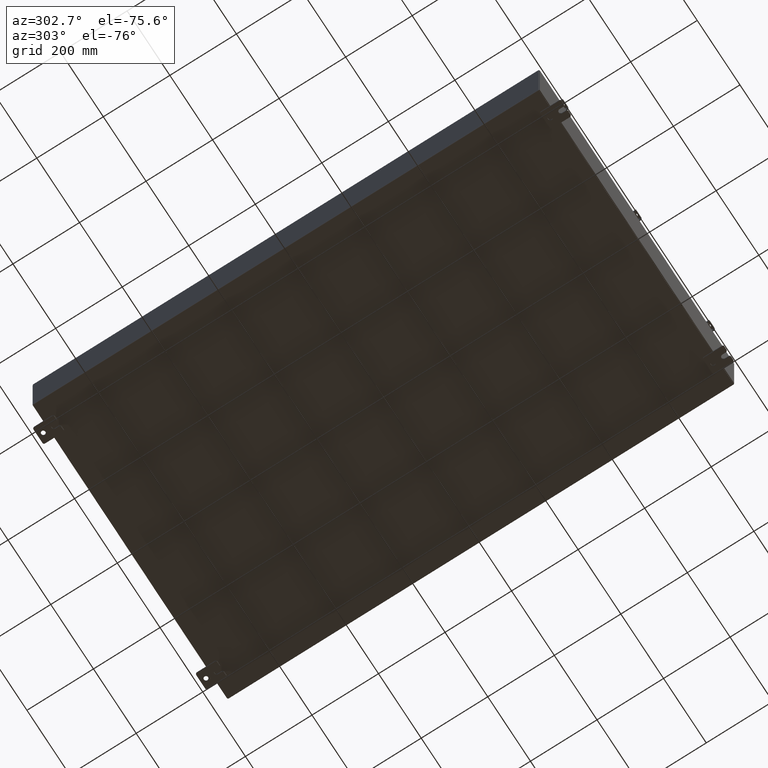
[diagram: clean part render]
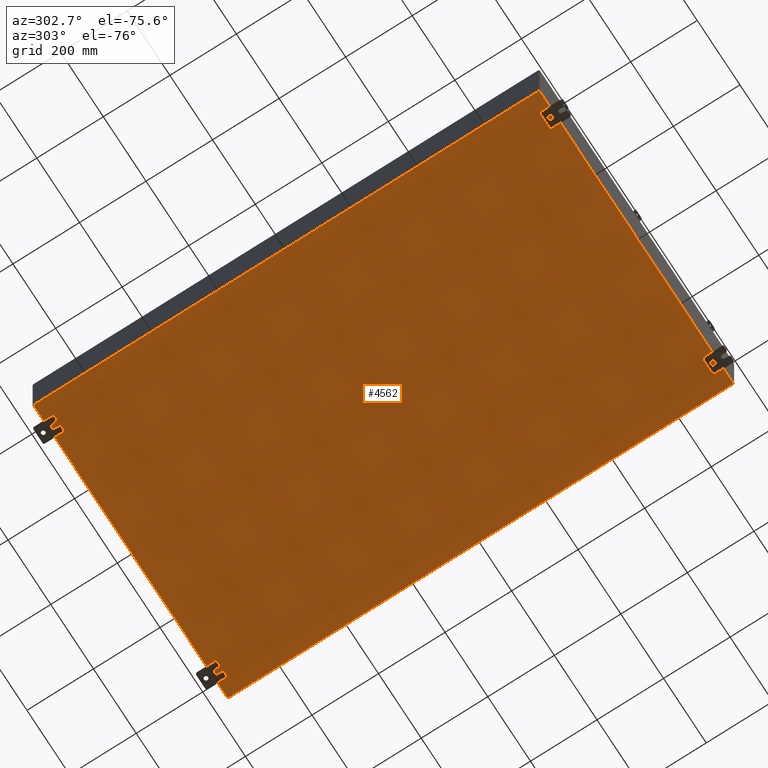
[diagram: same view with one face highlighted and labeled with its STEP entity id]
A machine part, auxiliary view. The second image highlights one B-rep face of the part: STEP entity #4562.
In plain terms, the highlighted planar face has unit normal (0, 0, -1).
Its self-contained STEP definition (entity closure, byte-faithful):
#528 = LINE ( 'NONE', #31906, #50363 ) ;
#737 = CARTESIAN_POINT ( 'NONE',  ( 0.0000000000000000000, 0.0000000000000000000, -0.07469999999999998900 ) ) ;
#2443 = DIRECTION ( 'NONE',  ( -0.0000000000000000000, 1.000000000000000000, -0.0000000000000000000 ) ) ;
#3130 = AXIS2_PLACEMENT_3D ( 'NONE', #737, #45551, #15857 ) ;
#4562 = ADVANCED_FACE ( 'NONE', ( #32142 ), #5746, .T. ) ;
#5746 = PLANE ( 'NONE',  #3130 ) ;
#6375 = VECTOR ( 'NONE', #44185, 39.37007874015748100 ) ;
#7499 = CARTESIAN_POINT ( 'NONE',  ( -17.91230000000000200, -29.92530000000002100, -0.07469999999999996100 ) ) ;
#9408 = VERTEX_POINT ( 'NONE', #25733 ) ;
#12532 = EDGE_CURVE ( 'NONE', #60084, #22839, #44514, .T. ) ;
#13079 = ORIENTED_EDGE ( 'NONE', *, *, #60121, .T. ) ;
#14363 = ORIENTED_EDGE ( 'NONE', *, *, #56588, .F. ) ;
#15857 = DIRECTION ( 'NONE',  ( -1.000000000000000000, 0.0000000000000000000, -0.0000000000000000000 ) ) ;
#21078 = EDGE_CURVE ( 'NONE', #25480, #22839, #62479, .T. ) ;
#21184 = VECTOR ( 'NONE', #29362, 39.37007874015748100 ) ;
#22839 = VERTEX_POINT ( 'NONE', #28561 ) ;
#24380 = CARTESIAN_POINT ( 'NONE',  ( 17.91229999999999800, 29.92529999999999300, -0.07469999999999996100 ) ) ;
#25141 = CARTESIAN_POINT ( 'NONE',  ( -17.91230000000000200, -29.92530000000001100, -0.07469999999999996100 ) ) ;
#25480 = VERTEX_POINT ( 'NONE', #25141 ) ;
#25733 = CARTESIAN_POINT ( 'NONE',  ( 17.91229999999999800, -29.92530000000001100, -0.07469999999999998900 ) ) ;
#26930 = DIRECTION ( 'NONE',  ( 1.000000000000000000, 0.0000000000000000000, 0.0000000000000000000 ) ) ;
#28561 = CARTESIAN_POINT ( 'NONE',  ( -17.91230000000000200, 29.92529999999998600, -0.07469999999999998900 ) ) ;
#29362 = DIRECTION ( 'NONE',  ( -0.0000000000000000000, -1.000000000000000000, -0.0000000000000000000 ) ) ;
#31906 = CARTESIAN_POINT ( 'NONE',  ( -18.00000000000000400, -29.92530000000001100, -0.07469999999999998900 ) ) ;
#32142 = FACE_OUTER_BOUND ( 'NONE', #40544, .T. ) ;
#36029 = VECTOR ( 'NONE', #2443, 39.37007874015748100 ) ;
#40544 = EDGE_LOOP ( 'NONE', ( #14363, #62391, #55427, #13079 ) ) ;
#43922 = CARTESIAN_POINT ( 'NONE',  ( 17.91229999999999800, 29.92529999999999300, -0.07469999999999996100 ) ) ;
#44185 = DIRECTION ( 'NONE',  ( -1.000000000000000000, -0.0000000000000000000, -0.0000000000000000000 ) ) ;
#44514 = LINE ( 'NONE', #63984, #6375 ) ;
#45551 = DIRECTION ( 'NONE',  ( 0.0000000000000000000, 0.0000000000000000000, -1.000000000000000000 ) ) ;
#50363 = VECTOR ( 'NONE', #26930, 39.37007874015748100 ) ;
#55427 = ORIENTED_EDGE ( 'NONE', *, *, #12532, .F. ) ;
#56588 = EDGE_CURVE ( 'NONE', #25480, #9408, #528, .T. ) ;
#60084 = VERTEX_POINT ( 'NONE', #43922 ) ;
#60121 = EDGE_CURVE ( 'NONE', #60084, #9408, #60812, .T. ) ;
#60812 = LINE ( 'NONE', #24380, #21184 ) ;
#62391 = ORIENTED_EDGE ( 'NONE', *, *, #21078, .T. ) ;
#62479 = LINE ( 'NONE', #7499, #36029 ) ;
#63984 = CARTESIAN_POINT ( 'NONE',  ( -18.00000000000000400, 29.92529999999998900, -0.07469999999999998900 ) ) ;